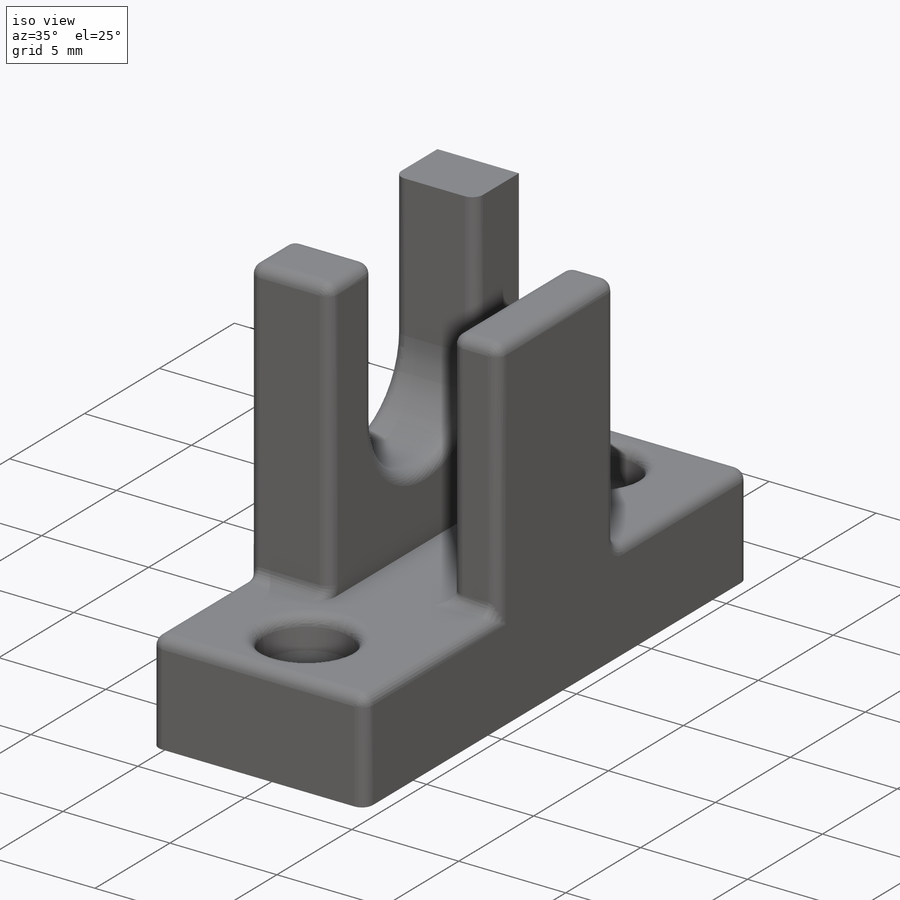
[diagram: iso view]
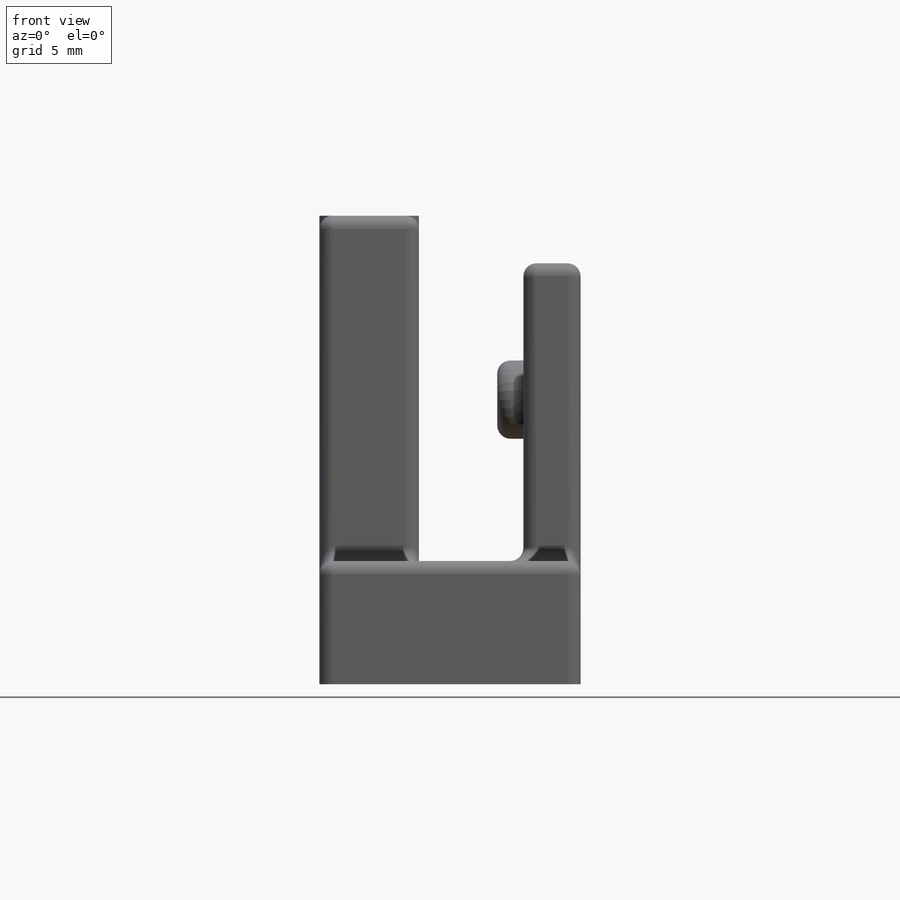
[diagram: front view]
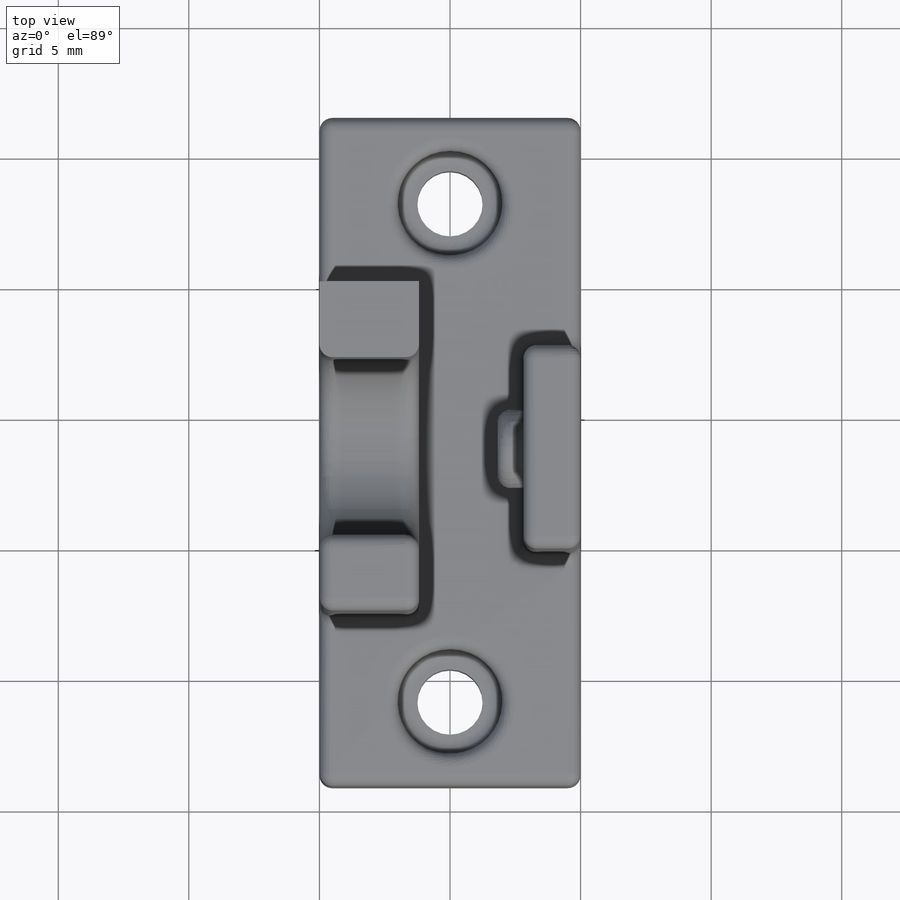
[diagram: top view]
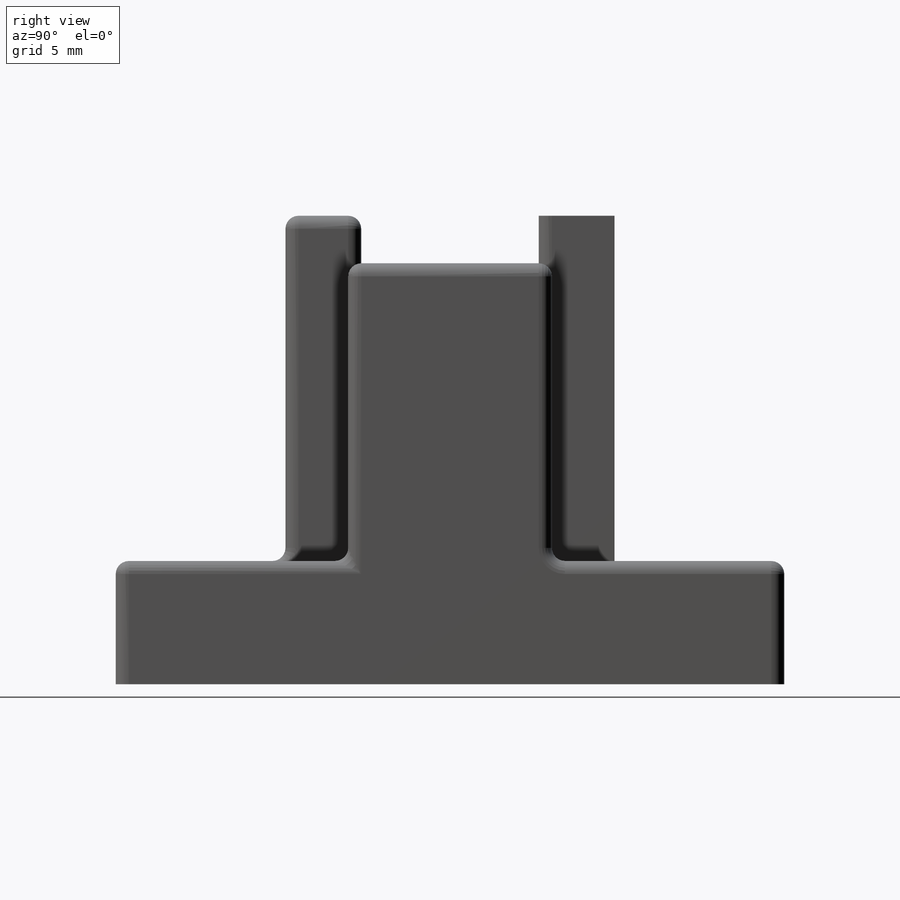
[diagram: right view]
SOLIDWORKS PART (.sldprt)
format: sldprt  version: not decoded by parser v0  size: 895,488 bytes
history: native  units: mm
features: fillet x20, sketch x15, cut_extrude x7, extrude x4, material x1 (+13 scaffold rows collapsed)
feature tree (60):
  scaffold x13  (default folders/planes/origin — collapsed)
  material  "Material <not specified>"
  sketch  "Sketch2"  dims[D1=10.0mm D2=17.94mm D3=3.81mm D4=13.22mm D5=11.4mm D6=4.0mm D7=1.85mm]
  extrude  "Boss-Extrude1"  Depth=12.6mm
  sketch  "Sketch3"  dims[c1.D1=~3.948856mm c1.D2=6.8mm c1.D3=6.8mm c2.D1=6.58mm c2.D2=~4.967245mm c2.D3=6.3mm c2.D4=12.6mm]
  cut_extrude  "Cut-Extrude1"  [1 undecoded]
  sketch  "Sketch5"
  sketch  "Sketch8"
  sketch  "Sketch9"  dims[D1=7.8mm D2=2.4mm D3=2.41mm]
  cut_extrude  "Cut-Extrude2"  Depth=2.86mm
  sketch  "Sketch12"  dims[D1=2.4mm]
  cut_extrude  "Cut-Extrude3"  Depth=2.86mm
  sketch  "Sketch13"  dims[D1=3.0mm D2=6.18mm D3=3.9mm]
  extrude  "Boss-Extrude2"  Depth=1mm
  sketch  "Sketch15"  dims[D1=4.72mm]
  extrude  "Boss-Extrude3"  Depth=6.5mm
  sketch  "Sketch17"  dims[D1=4.72mm D2=10.0mm]
  extrude  "Boss-Extrude4"  Depth=6.5mm
  sketch  "Sketch18"  dims[c1.D1=2.75mm c1.D2=6.0mm c1.D3=2.5mm c1.D4=4.0mm c2.D1=5.0mm c2.D2=3.26mm c2.D4=3.81mm]
  sketch  "Sketch25"
  sketch  "Sketch19"  dims[c1.D1=~2.970811mm c1.D3=4.0mm c2.D1=5.0mm c2.D2=~3.255573mm c2.D3=10.0mm]
  cut_extrude  "Cut-Extrude4"  Depth=2mm
  cut_extrude  "Cut-Extrude5"  Depth=2mm
  sketch  "Sketch26"
  sketch  "Sketch21"  dims[D1=~1.002675mm]
  cut_extrude  "Cut-Extrude6"  Depth=3mm
  sketch  "Sketch22"  dims[D1=~1.027721mm]
  cut_extrude  "Cut-Extrude7"  Depth=3mm
  fillet  "Fillet1"  Radius=0.5mm
  fillet  "Fillet2"  Radius=0.5mm
  fillet  "Fillet8"  Radius=0.5mm
  fillet  "Fillet9"  Radius=0.5mm
  fillet  "Fillet10"  Radius=0.5mm
  fillet  "Fillet11"  Radius=0.5mm
  fillet  "Fillet12"  Radius=0.5mm
  fillet  "Fillet14"  Radius=0.5mm
  fillet  "Fillet15"  Radius=0.5mm
  fillet  "Fillet16"  Radius=0.5mm
  fillet  "Fillet17"  Radius=0.5mm
  fillet  "Fillet18"  Radius=0.5mm
  fillet  "Fillet19"  Radius=0.5mm
  fillet  "Fillet20"  Radius=0.5mm
  fillet  "Fillet21"  Radius=0.5mm
  fillet  "Fillet22"  Radius=0.5mm
  fillet  "Fillet23"  Radius=0.5mm
  fillet  "Fillet24"  Radius=0.5mm
  fillet  "Fillet25"  Radius=0.5mm
  fillet  "Fillet26"  Radius=0.5mm
decode coverage: 41 of 46 modeling features carry decoded parameters
note: ~ marks probable driven/reference dimensions
note: 1 parameter value undecoded
note: suppression state not decoded; provenance and decode notes live in map.json
